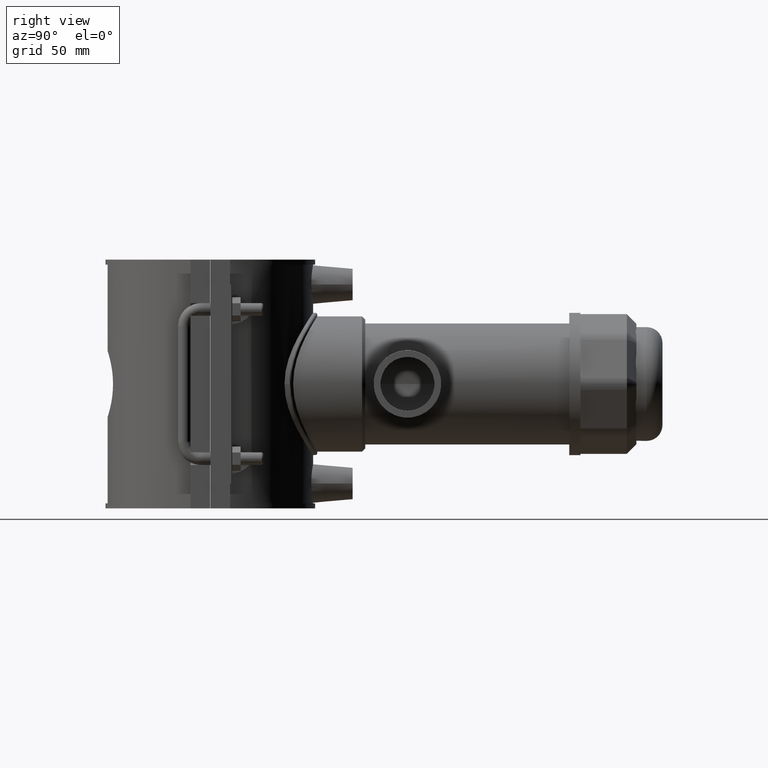
[diagram: clean part render]
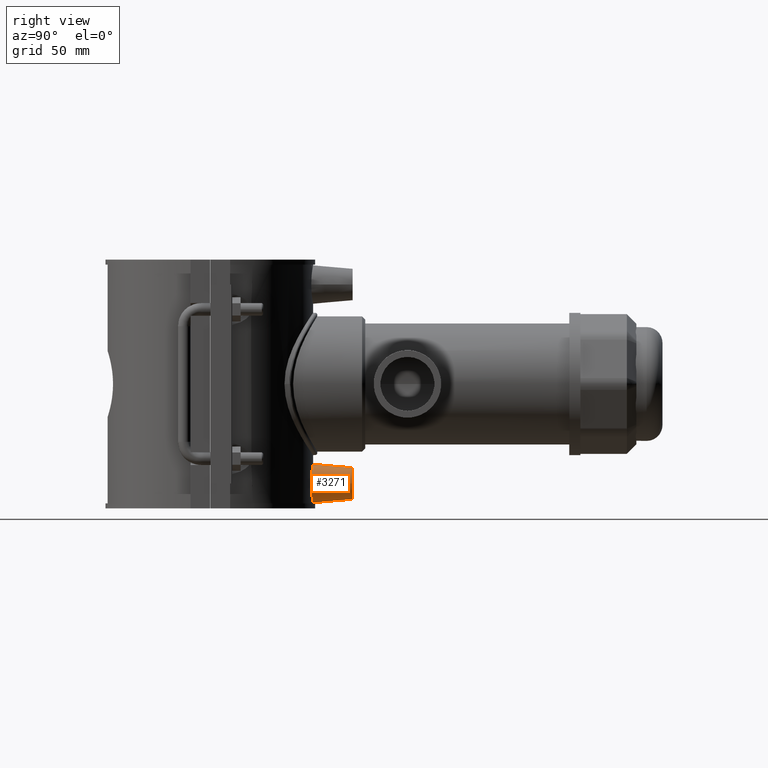
[diagram: same view with one face highlighted and labeled with its STEP entity id]
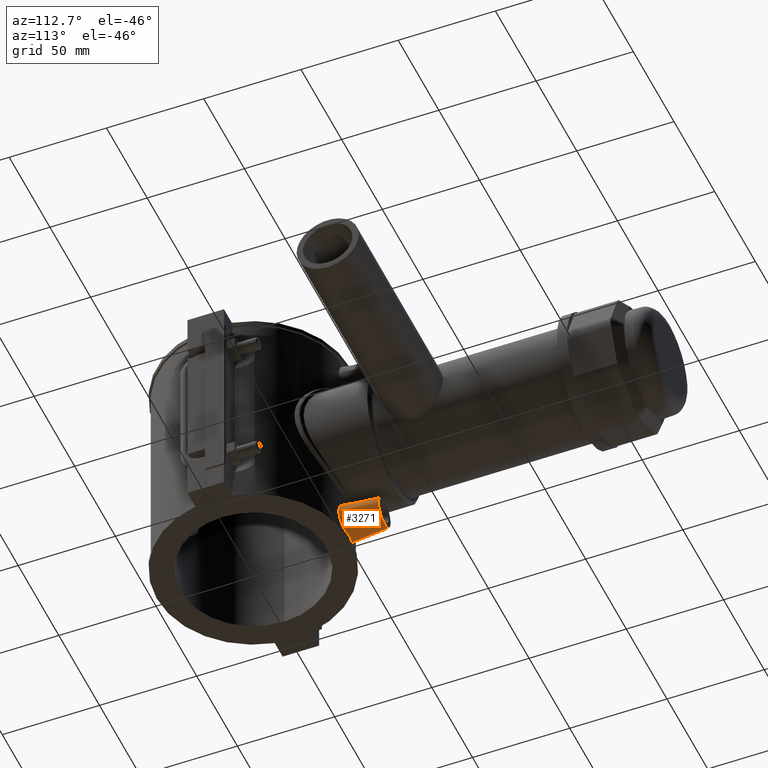
[diagram: same view with one face highlighted and labeled with its STEP entity id]
A machine part, right view. The second image highlights one B-rep face of the part: STEP entity #3271.
A second angle (auxiliary view) of the same face is appended — the face is thin or edge-on in the first view.
In plain terms, the highlighted conical surface has half-angle 5 deg.
Its self-contained STEP definition (entity closure, byte-faithful):
#35=CONICAL_SURFACE('',#3549,7.5,5.);
#657=FACE_BOUND('',#1119,.T.);
#695=B_SPLINE_CURVE_WITH_KNOTS('',3,(#5617,#5618,#5619,#5620,#5621,#5622,
#5623,#5624,#5625,#5626,#5627,#5628,#5629,#5630,#5631,#5632,#5633,#5634,
#5635,#5636,#5637,#5638,#5639,#5640,#5641,#5642,#5643,#5644,#5645,#5646,
#5647,#5648,#5649,#5650),.UNSPECIFIED.,.T.,.F.,(4,2,2,2,2,2,2,2,2,2,2,2,
2,2,2,2,4),(0.,0.347008322146705,0.69401664429341,1.04032850766725,1.38664037104109,
1.73295223441493,2.07926409778876,2.42627241993547,2.77328074208217,3.12028906422888,
3.46729738637559,3.81360924974942,4.15992111312326,4.5062329764971,4.85254483987094,
5.19955316201765,5.54656148416435),.UNSPECIFIED.);
#891=FACE_OUTER_BOUND('',#1118,.T.);
#1118=EDGE_LOOP('',(#2642));
#1119=EDGE_LOOP('',(#2643));
#1297=CIRCLE('',#3548,7.5);
#1472=VERTEX_POINT('',#5616);
#1562=VERTEX_POINT('',#6181);
#1833=EDGE_CURVE('',#1472,#1472,#695,.T.);
#1957=EDGE_CURVE('',#1562,#1562,#1297,.T.);
#2642=ORIENTED_EDGE('',*,*,#1957,.T.);
#2643=ORIENTED_EDGE('',*,*,#1833,.F.);
#3271=ADVANCED_FACE('',(#891,#657),#35,.T.);
#3548=AXIS2_PLACEMENT_3D('',#6182,#4255,#4256);
#3549=AXIS2_PLACEMENT_3D('',#6183,#4257,#4258);
#4255=DIRECTION('center_axis',(0.,-1.,0.));
#4256=DIRECTION('ref_axis',(1.,0.,0.));
#4257=DIRECTION('center_axis',(0.,-1.,0.));
#4258=DIRECTION('ref_axis',(1.,0.,0.));
#5616=CARTESIAN_POINT('',(9.2173419643886,47.8706915253114,-47.2));
#5617=CARTESIAN_POINT('Ctrl Pts',(9.2173419643886,47.8706915253114,-47.2));
#5618=CARTESIAN_POINT('Ctrl Pts',(9.2173419643886,47.8706915253114,-46.0433055928443));
#5619=CARTESIAN_POINT('Ctrl Pts',(8.98234902795153,47.9177619174684,-44.8126981533247));
#5620=CARTESIAN_POINT('Ctrl Pts',(8.03380907708543,48.0858857389849,-42.5557666584694));
#5621=CARTESIAN_POINT('Ctrl Pts',(7.32047741248681,48.2043265249315,-41.5291582448232));
#5622=CARTESIAN_POINT('Ctrl Pts',(5.68282698567005,48.4246757336249,-39.9134295231966));
#5623=CARTESIAN_POINT('Ctrl Pts',(4.64904941468983,48.5410868257842,-39.2147463178761));
#5624=CARTESIAN_POINT('Ctrl Pts',(2.38492442190629,48.7048550538957,-38.2877707989113));
#5625=CARTESIAN_POINT('Ctrl Pts',(1.1543728779128,48.75,-38.0595875588889));
#5626=CARTESIAN_POINT('Ctrl Pts',(-1.1543728779128,48.75,-38.0595875588889));
#5627=CARTESIAN_POINT('Ctrl Pts',(-2.38492442190629,48.7048550538957,-38.2877707989113));
#5628=CARTESIAN_POINT('Ctrl Pts',(-4.64904941468984,48.5410868257842,-39.2147463178761));
#5629=CARTESIAN_POINT('Ctrl Pts',(-5.68282698567005,48.4246757336249,-39.9134295231966));
#5630=CARTESIAN_POINT('Ctrl Pts',(-7.32047741248681,48.2043265249315,-41.5291582448232));
#5631=CARTESIAN_POINT('Ctrl Pts',(-8.03380907708543,48.0858857389849,-42.5557666584694));
#5632=CARTESIAN_POINT('Ctrl Pts',(-8.98234902795153,47.9177619174684,-44.8126981533247));
#5633=CARTESIAN_POINT('Ctrl Pts',(-9.2173419643886,47.8706915253114,-46.0433055928443));
#5634=CARTESIAN_POINT('Ctrl Pts',(-9.2173419643886,47.8706915253114,-48.3566944071557));
#5635=CARTESIAN_POINT('Ctrl Pts',(-8.98234902795153,47.9177619174684,-49.5873018466754));
#5636=CARTESIAN_POINT('Ctrl Pts',(-8.03380907708542,48.0858857389849,-51.8442333415306));
#5637=CARTESIAN_POINT('Ctrl Pts',(-7.32047741248681,48.2043265249315,-52.8708417551769));
#5638=CARTESIAN_POINT('Ctrl Pts',(-5.68282698567005,48.4246757336249,-54.4865704768034));
#5639=CARTESIAN_POINT('Ctrl Pts',(-4.64904941468983,48.5410868257842,-55.1852536821239));
#5640=CARTESIAN_POINT('Ctrl Pts',(-2.38492442190628,48.7048550538957,-56.1122292010888));
#5641=CARTESIAN_POINT('Ctrl Pts',(-1.1543728779128,48.75,-56.3404124411111));
#5642=CARTESIAN_POINT('Ctrl Pts',(1.15437287791279,48.75,-56.3404124411111));
#5643=CARTESIAN_POINT('Ctrl Pts',(2.38492442190628,48.7048550538957,-56.1122292010888));
#5644=CARTESIAN_POINT('Ctrl Pts',(4.64904941468983,48.5410868257842,-55.1852536821239));
#5645=CARTESIAN_POINT('Ctrl Pts',(5.68282698567004,48.4246757336249,-54.4865704768034));
#5646=CARTESIAN_POINT('Ctrl Pts',(7.32047741248681,48.2043265249315,-52.8708417551769));
#5647=CARTESIAN_POINT('Ctrl Pts',(8.03380907708543,48.0858857389849,-51.8442333415306));
#5648=CARTESIAN_POINT('Ctrl Pts',(8.98234902795153,47.9177619174684,-49.5873018466754));
#5649=CARTESIAN_POINT('Ctrl Pts',(9.2173419643886,47.8706915253114,-48.3566944071557));
#5650=CARTESIAN_POINT('Ctrl Pts',(9.2173419643886,47.8706915253114,-47.2));
#6181=CARTESIAN_POINT('',(-7.5,67.5,-47.2));
#6182=CARTESIAN_POINT('Origin',(0.,67.5,-47.2));
#6183=CARTESIAN_POINT('Origin',(0.,67.5,-47.2));